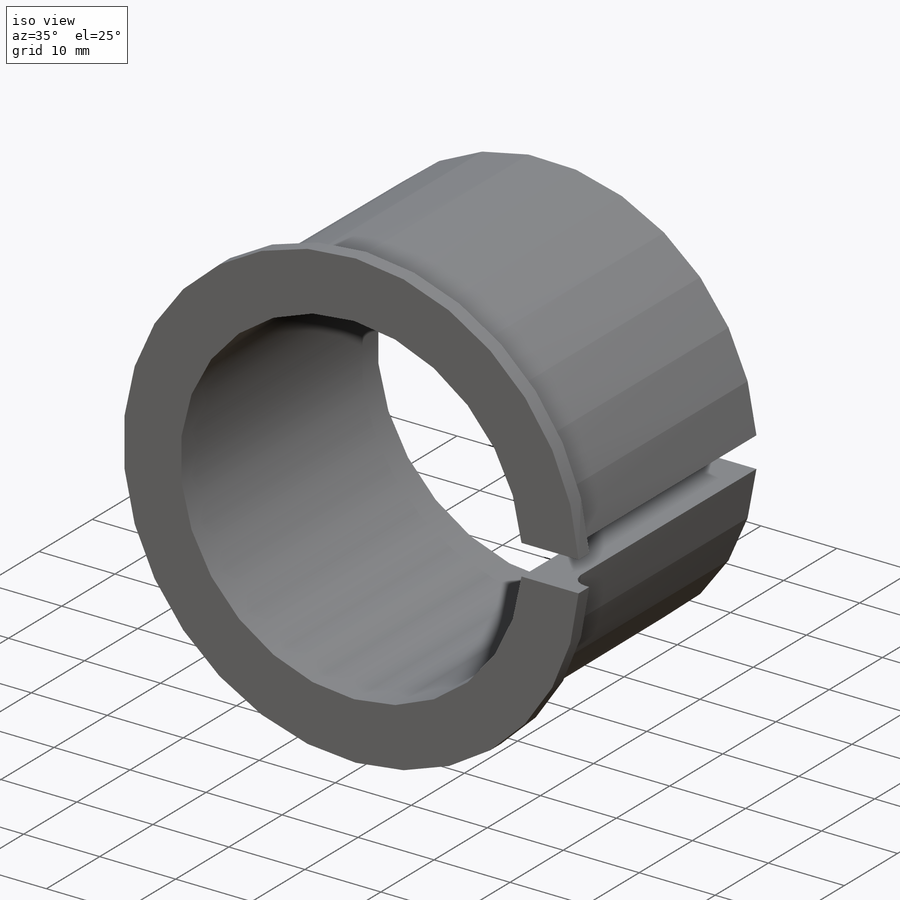
[diagram: iso view]
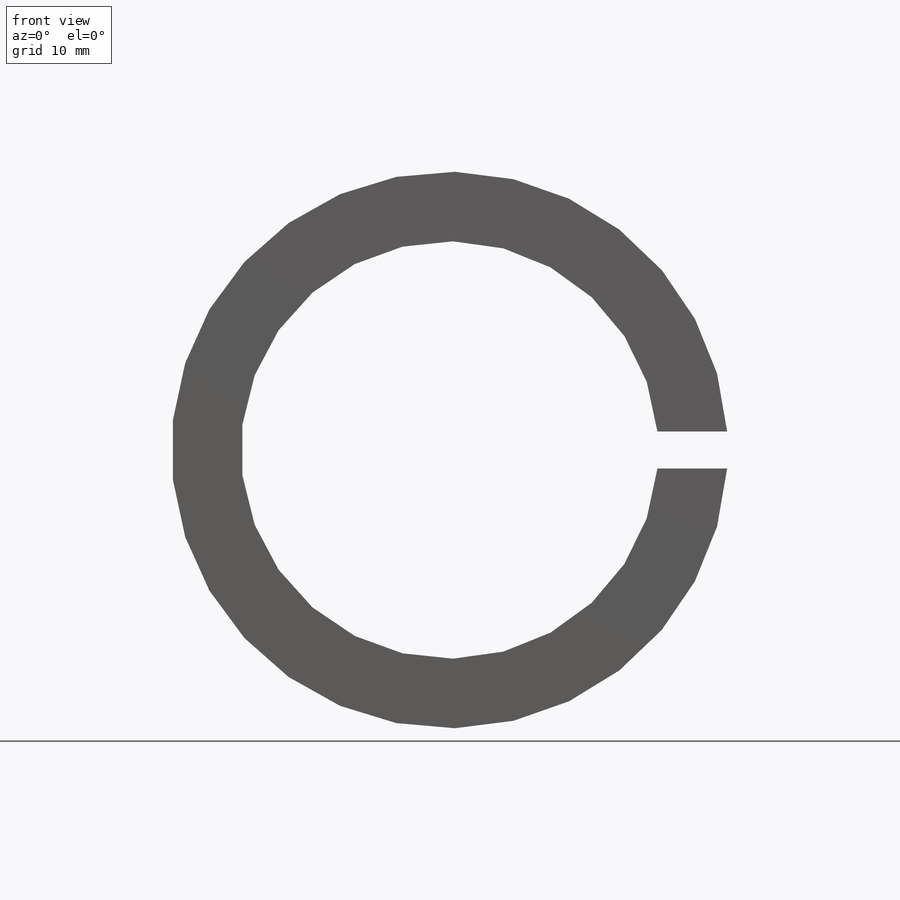
[diagram: front view]
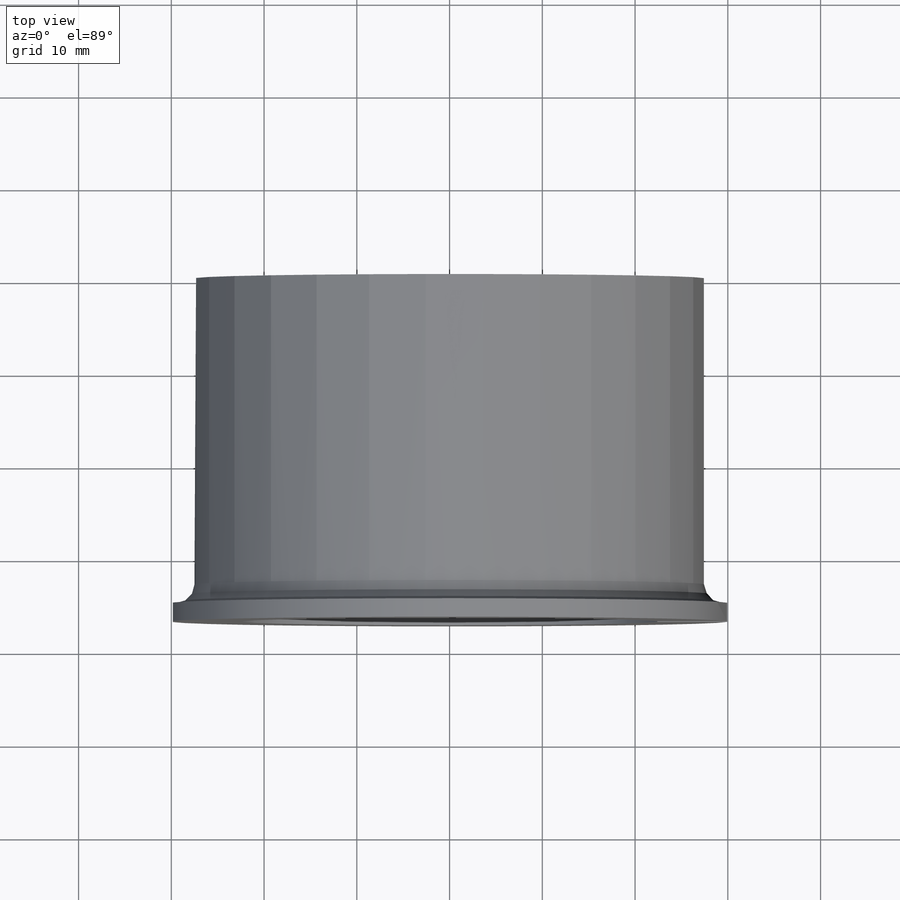
[diagram: top view]
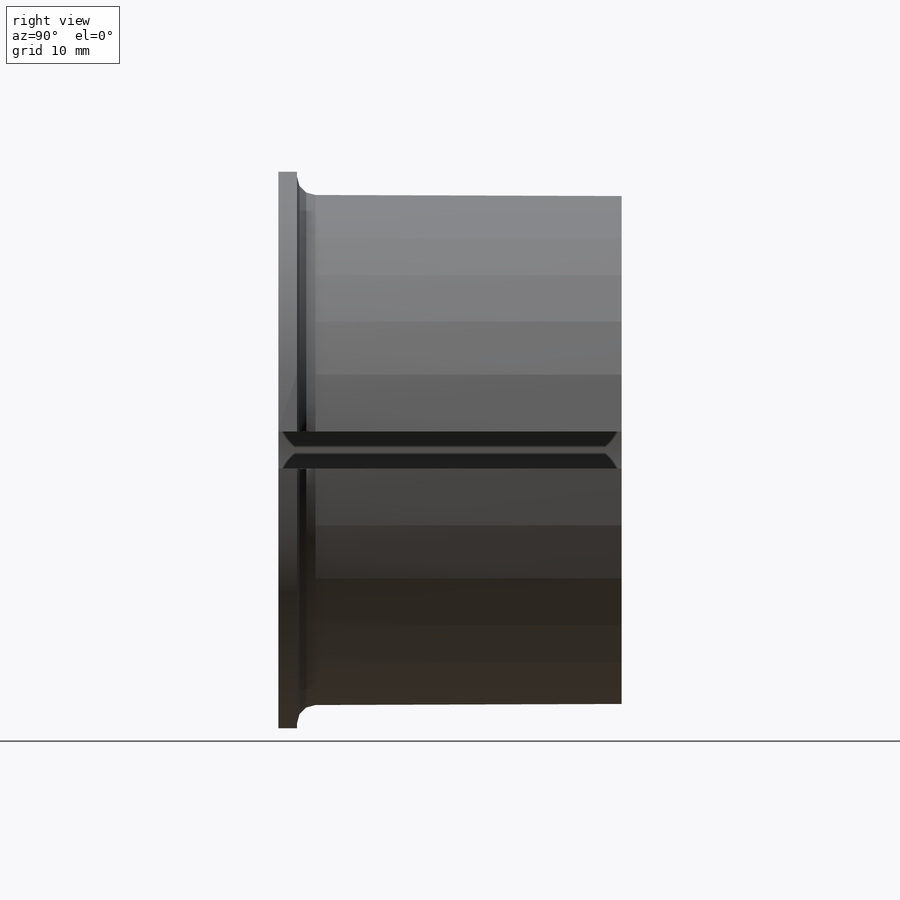
[diagram: right view]
SOLIDWORKS PART (.sldprt)
format: sldprt  version: not decoded by parser v0  size: 188,928 bytes
history: native  units: mm
features: sketch x2, extrude x2, material x1, fillet x1 (+13 scaffold rows collapsed)
feature tree (19):
  scaffold x13  (default folders/planes/origin — collapsed)
  material  "Material <not specified>"
  sketch  "Эскиз1"  dims[c1.D1=45.0mm c1.D2=55.0mm c1.D3=~2.593168mm c1.D4=~8.071366mm c2.D3=4.0mm]
  extrude  "Бобышка-Вытянуть1"  Depth=35mm
  sketch  "Эскиз2"  dims[D1=~5.113482mm]
  extrude  "Бобышка-Вытянуть2"  Depth=2mm
  fillet  "Скругление1"  Radius=2mm
decode coverage: 5 of 5 modeling features carry decoded parameters
note: ~ marks probable driven/reference dimensions
note: suppression state not decoded; provenance and decode notes live in map.json
